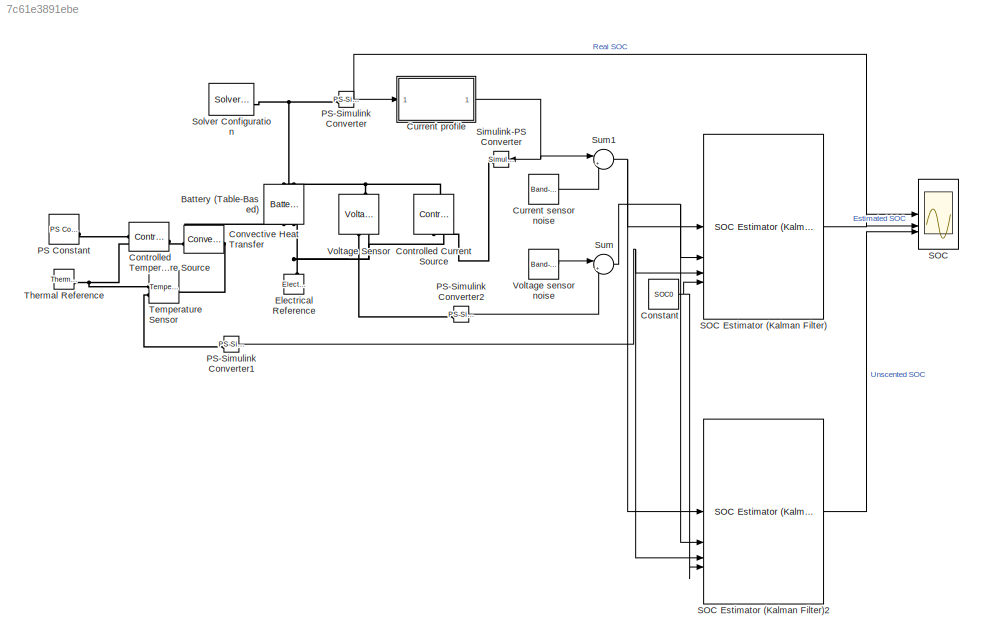
MODEL slx_7c61e3891ebe
KIND model
CONFIG AbsTol = auto
CONFIG EnableMultiTasking = on
CONFIG FixedStep = Ts
CONFIG MaxStep = auto
CONFIG MinStep = auto
CONFIG PreLoadFcn = BatterySOCEstimationData;
CONFIG RelTol = 1e-3
CONFIG SampleTimeConstraint = Unconstrained
CONFIG SolverName = VariableStepAuto
CONFIG StartTime = 0.0
CONFIG StopTime = 6*3600
BLOCK [Reference] Battery (Table-Based)  REF=batteryecm_lib/Battery
(Table-Based)
  NameLocation = left
  SourceBlock = batteryecm_lib/Battery\n(Table-Based)
  SourceType = Battery\n(Table-Based)
BLOCK [Constant] Constant
  Value = SOC0
BLOCK [Reference] Controlled Current Source  REF=fl_lib/Electrical/Electrical Sources/Controlled Current
Source
  NameLocation = right
  SourceBlock = fl_lib/Electrical/Electrical Sources/Controlled Current\nSource
  SourceType = Controlled Current\nSource
BLOCK [Reference] Controlled Temperature Source  REF=fl_lib/Thermal/Thermal Sources/Controlled
Temperature Source
  NameLocation = top
  SourceBlock = fl_lib/Thermal/Thermal Sources/Controlled\nTemperature Source
  SourceType = Controlled\nTemperature Source
BLOCK [Reference] Convective Heat Transfer  REF=fl_lib/Thermal/Thermal Elements/Convective Heat
Transfer
  NameLocation = top
  SourceBlock = fl_lib/Thermal/Thermal Elements/Convective Heat\nTransfer
  SourceType = Convective Heat\nTransfer
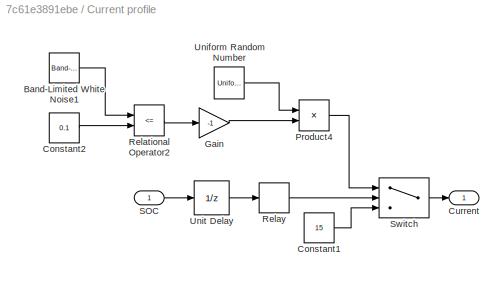
BLOCK [SubSystem] Current profile
BLOCK [Reference] Current profile/Band-Limited White Noise1  REF=simulink/Sources/Band-Limited
White Noise
  SourceBlock = simulink/Sources/Band-Limited\nWhite Noise
  SourceType = Band-Limited White Noise.
BLOCK [Constant] Current profile/Constant1
  Value = 15
BLOCK [Constant] Current profile/Constant2
  Value = 0.1
BLOCK [Outport] Current profile/Current
BLOCK [Gain] Current profile/Gain
  Gain = -1
BLOCK [Product] Current profile/Product4
BLOCK [RelationalOperator] Current profile/Relational Operator2
  InputSameDT = off
  Operator = <=
  OutDataTypeStr = boolean
  RndMeth = Simplest
BLOCK [Relay] Current profile/Relay
  OffOutputValue = -1
  OffSwitchValue = 0.3
  OnSwitchValue = 0.9
BLOCK [Inport] Current profile/SOC
BLOCK [Switch] Current profile/Switch
  Criteria = u2 > Threshold
  InputSameDT = off
  SaturateOnIntegerOverflow = off
BLOCK [UniformRandomNumber] Current profile/Uniform Random Number
  Maximum = 55
  Minimum = 5
  SampleTime = 100
BLOCK [UnitDelay] Current profile/Unit Delay
  HasFrameUpgradeWarning = on
  SampleTime = Ts
BLOCK [Reference] Current sensor noise  REF=simulink/Sources/Band-Limited
White Noise
  SourceBlock = simulink/Sources/Band-Limited\nWhite Noise
  SourceType = Band-Limited White Noise.
BLOCK [Reference] Electrical Reference  REF=fl_lib/Electrical/Electrical Elements/Electrical Reference
  NameLocation = right
  SourceBlock = fl_lib/Electrical/Electrical Elements/Electrical Reference
  SourceType = Electrical Reference
BLOCK [Reference] PS Constant  REF=fl_lib/Physical Signals/Sources/PS Constant
  SourceBlock = fl_lib/Physical Signals/Sources/PS Constant
  SourceType = PS Constant
BLOCK [Reference] PS-Simulink Converter  REF=nesl_utility/PS-Simulink
Converter
  SourceBlock = nesl_utility/PS-Simulink\nConverter
  SourceType = PS-Simulink\nConverter
BLOCK [Reference] PS-Simulink Converter1  REF=nesl_utility/PS-Simulink
Converter
  SourceBlock = nesl_utility/PS-Simulink\nConverter
  SourceType = PS-Simulink\nConverter
BLOCK [Reference] PS-Simulink Converter2  REF=nesl_utility/PS-Simulink
Converter
  SourceBlock = nesl_utility/PS-Simulink\nConverter
  SourceType = PS-Simulink\nConverter
BLOCK [Scope] SOC
  Floating = off
  NumInputPorts = 3
  ScopeSpecificationString = Simulink.scopes.TimeScopeBlockCfg('CurrentConfiguration', extmgr.ConfigurationSet(extmgr.Configuration('Core','General UI',true),extmgr.Configuration('Core','Source UI',true),extmgr.Configuration('Sources','WiredSimulink',true,'DataLoggingVariableName','ScopeData3'),extmgr.Configuration('Visuals','Time Domain',true,'SerializedDisplays',{struct('MinYLimReal','0.19088','MaxYLimReal','0.98926','YLabe...<+1508ch>
BLOCK [Reference] SOC Estimator (Kalman Filter)  REF=BatteryEstimators/SOC Estimator
(Kalman Filter)
  SourceBlock = BatteryEstimators/SOC Estimator\n(Kalman Filter)
  SourceType = SOC Estimator (Kalman Filter)
BLOCK [Reference] SOC Estimator (Kalman Filter)2  REF=BatteryEstimators/SOC Estimator
(Kalman Filter)
  SourceBlock = BatteryEstimators/SOC Estimator\n(Kalman Filter)
  SourceType = SOC Estimator (Kalman Filter)
BLOCK [Reference] Simulink-PS Converter  REF=nesl_utility/Simulink-PS
Converter
  NameLocation = top
  SourceBlock = nesl_utility/Simulink-PS\nConverter
  SourceType = Simulink-PS\nConverter
BLOCK [Reference] Solver Configuration  REF=nesl_utility/Solver
Configuration
  SourceBlock = nesl_utility/Solver\nConfiguration
  SourceType = Solver\nConfiguration
BLOCK [Sum] Sum
  Inputs = |++
BLOCK [Sum] Sum1
  Inputs = |++
BLOCK [Reference] Temperature Sensor  REF=fl_lib/Thermal/Thermal Sensors/Temperature Sensor
  NameLocation = top
  SourceBlock = fl_lib/Thermal/Thermal Sensors/Temperature Sensor
  SourceType = Temperature Sensor
BLOCK [Reference] Thermal Reference  REF=fl_lib/Thermal/Thermal Elements/Thermal Reference
  SourceBlock = fl_lib/Thermal/Thermal Elements/Thermal Reference
  SourceType = Thermal Reference
BLOCK [Reference] Voltage Sensor  REF=fl_lib/Electrical/Electrical Sensors/Voltage Sensor
  NameLocation = right
  SourceBlock = fl_lib/Electrical/Electrical Sensors/Voltage Sensor
  SourceType = Voltage Sensor
BLOCK [Reference] Voltage sensor noise  REF=simulink/Sources/Band-Limited
White Noise
  SourceBlock = simulink/Sources/Band-Limited\nWhite Noise
  SourceType = Band-Limited White Noise.
NET Constant:1 -> SOC Estimator (Kalman Filter)2:4, SOC Estimator (Kalman Filter):4
LINE Current profile/Band-Limited White Noise1:1 -> Current profile/Relational Operator2:1
LINE Current profile/Constant1:1 -> Current profile/Switch:3
LINE Current profile/Constant2:1 -> Current profile/Relational Operator2:2
LINE Current profile/Gain:1 -> Current profile/Product4:2
LINE Current profile/Product4:1 -> Current profile/Switch:1
LINE Current profile/Relational Operator2:1 -> Current profile/Gain:1
LINE Current profile/Relay:1 -> Current profile/Switch:2
LINE Current profile/SOC:1 -> Current profile/Unit Delay:1
LINE Current profile/Switch:1 -> Current profile/Current:1
LINE Current profile/Uniform Random Number:1 -> Current profile/Product4:1
LINE Current profile/Unit Delay:1 -> Current profile/Relay:1
NET Current profile:1 -> Simulink-PS Converter:1, Sum1:1
LINE Current sensor noise:1 -> Sum1:2
NET PS-Simulink Converter1:1 -> SOC Estimator (Kalman Filter)2:3, SOC Estimator (Kalman Filter):3
LINE PS-Simulink Converter2:1 -> Sum:2
NET PS-Simulink Converter:1 -> Current profile:1, SOC:1
LINE SOC Estimator (Kalman Filter)2:1 -> SOC:3
LINE SOC Estimator (Kalman Filter):1 -> SOC:2
NET Sum1:1 -> SOC Estimator (Kalman Filter)2:1, SOC Estimator (Kalman Filter):1
NET Sum:1 -> SOC Estimator (Kalman Filter)2:2, SOC Estimator (Kalman Filter):2
LINE Voltage sensor noise:1 -> Sum:1
PNET net1: Battery (Table-Based):LConn1 -- Controlled Current Source:LConn1 -- Voltage Sensor:LConn1
PNET net2: Battery (Table-Based):LConn2 -- PS-Simulink Converter:LConn1 -- Solver Configuration:RConn1
PNET net3: Battery (Table-Based):RConn1 -- Controlled Current Source:RConn2 -- Electrical Reference:LConn1 -- Voltage Sensor:RConn2
PNET net4: Battery (Table-Based):RConn2 -- Convective Heat Transfer:LConn1 -- Temperature Sensor:LConn1
PLINE Controlled Current Source:RConn1 -- Simulink-PS Converter:RConn1
PLINE Controlled Temperature Source:LConn1 -- Convective Heat Transfer:RConn1
PLINE Controlled Temperature Source:RConn1 -- PS Constant:RConn1
PNET net5: Controlled Temperature Source:RConn2 -- Temperature Sensor:RConn1 -- Thermal Reference:LConn1
PLINE PS-Simulink Converter1:LConn1 -- Temperature Sensor:RConn2
PLINE PS-Simulink Converter2:LConn1 -- Voltage Sensor:RConn1
note: NET lines group one-source signal fan-out (src -> all destinations, sorted); 1:1 wires keep LINE; PNET lines group multi-terminal physical nets as a canonical sorted terminal list (undirected conserving connections); 2-terminal nets keep the pairwise PLINE form
